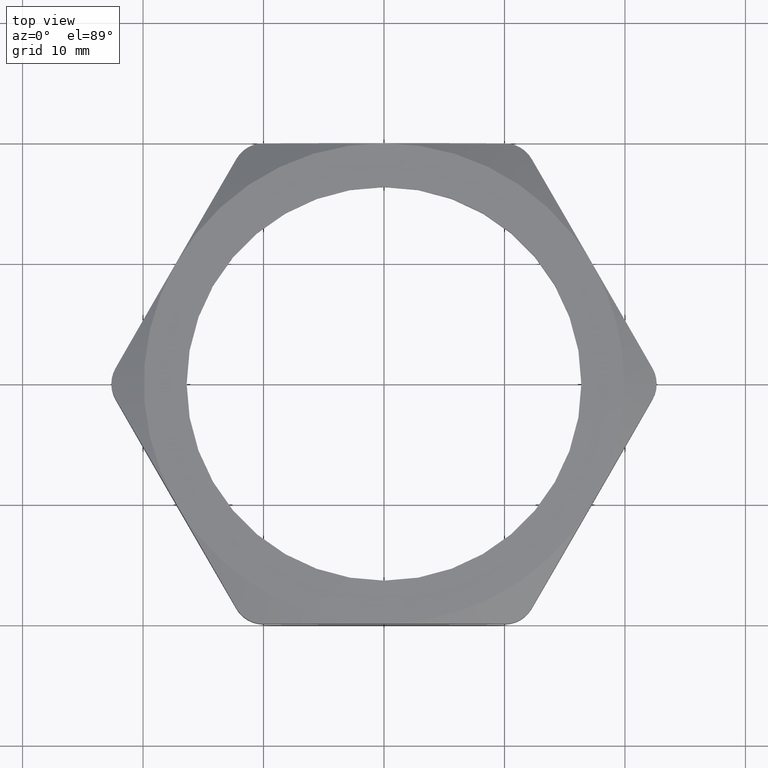
[diagram: clean part render]
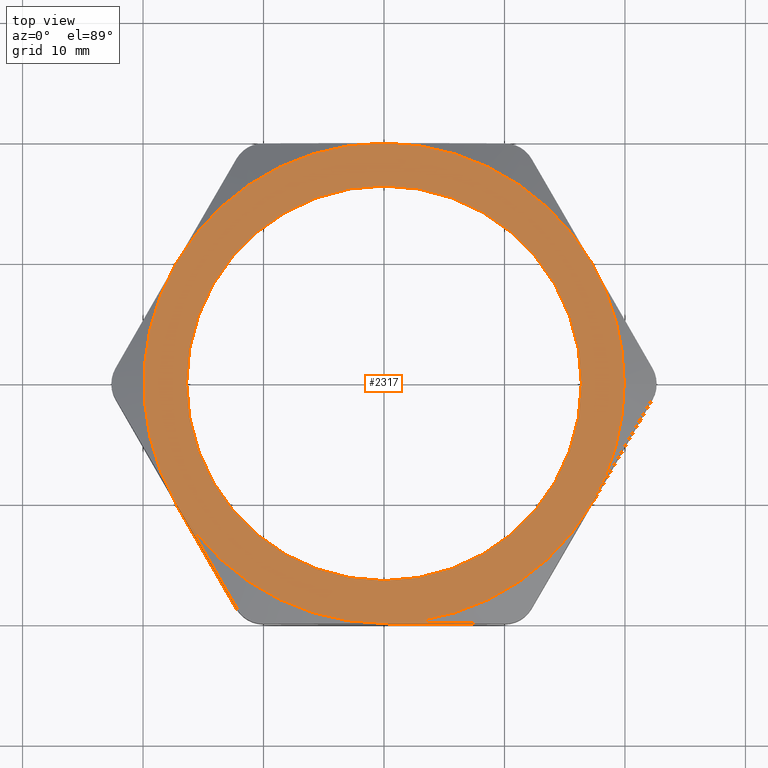
[diagram: same view with one face highlighted and labeled with its STEP entity id]
A machine part, top view. The second image highlights one B-rep face of the part: STEP entity #2317.
In plain terms, the highlighted planar face has unit normal (0, 0, 1).
Its self-contained STEP definition (entity closure, byte-faithful):
#173 = EDGE_CURVE ( 'NONE', #174, #175, #607, .T. ) ;
#174 = VERTEX_POINT ( 'NONE', #654 ) ;
#175 = VERTEX_POINT ( 'NONE', #653 ) ;
#232 = EDGE_CURVE ( 'NONE', #233, #234, #741, .T. ) ;
#233 = VERTEX_POINT ( 'NONE', #736 ) ;
#234 = VERTEX_POINT ( 'NONE', #735 ) ;
#607 = CIRCLE ( 'NONE', #658, 0.6449999999999999100 ) ;
#653 = CARTESIAN_POINT ( 'NONE',  ( 0.6449999999999999100, 8.021436534415163000E-017, 0.2700000000000000200 ) ) ;
#654 = CARTESIAN_POINT ( 'NONE',  ( -0.6449999999999999100, 0.0000000000000000000, 0.2700000000000000200 ) ) ;
#655 = DIRECTION ( 'NONE',  ( 1.000000000000000000, 0.0000000000000000000, 0.0000000000000000000 ) ) ;
#656 = DIRECTION ( 'NONE',  ( 0.0000000000000000000, 0.0000000000000000000, 1.000000000000000000 ) ) ;
#657 = CARTESIAN_POINT ( 'NONE',  ( 0.0000000000000000000, 0.0000000000000000000, 0.2700000000000000200 ) ) ;
#658 = AXIS2_PLACEMENT_3D ( 'NONE', #657, #656, #655 ) ;
#735 = CARTESIAN_POINT ( 'NONE',  ( 0.6798299419707848300, 0.3925000000000001300, 0.2700000000000000200 ) ) ;
#736 = CARTESIAN_POINT ( 'NONE',  ( 0.7850000000000002500, 0.0000000000000000000, 0.2700000000000000200 ) ) ;
#737 = DIRECTION ( 'NONE',  ( 1.000000000000000000, 0.0000000000000000000, 0.0000000000000000000 ) ) ;
#738 = DIRECTION ( 'NONE',  ( 0.0000000000000000000, 0.0000000000000000000, 1.000000000000000000 ) ) ;
#739 = CARTESIAN_POINT ( 'NONE',  ( 0.0000000000000000000, 0.0000000000000000000, 0.2700000000000000200 ) ) ;
#740 = AXIS2_PLACEMENT_3D ( 'NONE', #739, #738, #737 ) ;
#741 = CIRCLE ( 'NONE', #740, 0.7850000000000002500 ) ;
#1083 = DIRECTION ( 'NONE',  ( 1.000000000000000000, 0.0000000000000000000, 0.0000000000000000000 ) ) ;
#1084 = DIRECTION ( 'NONE',  ( 0.0000000000000000000, 0.0000000000000000000, 1.000000000000000000 ) ) ;
#1085 = CARTESIAN_POINT ( 'NONE',  ( 0.0000000000000000000, 0.0000000000000000000, 0.2700000000000000200 ) ) ;
#1086 = AXIS2_PLACEMENT_3D ( 'NONE', #1085, #1084, #1083 ) ;
#1087 = CIRCLE ( 'NONE', #1086, 0.6449999999999999100 ) ;
#1101 = DIRECTION ( 'NONE',  ( 1.000000000000000000, 0.0000000000000000000, 0.0000000000000000000 ) ) ;
#1102 = DIRECTION ( 'NONE',  ( 0.0000000000000000000, 0.0000000000000000000, 1.000000000000000000 ) ) ;
#1103 = CARTESIAN_POINT ( 'NONE',  ( 0.0000000000000000000, 0.0000000000000000000, 0.2700000000000000200 ) ) ;
#1104 = AXIS2_PLACEMENT_3D ( 'NONE', #1103, #1102, #1101 ) ;
#1109 = CIRCLE ( 'NONE', #1104, 0.7850000000000002500 ) ;
#1137 = DIRECTION ( 'NONE',  ( 1.000000000000000000, 0.0000000000000000000, 0.0000000000000000000 ) ) ;
#1138 = DIRECTION ( 'NONE',  ( 0.0000000000000000000, 0.0000000000000000000, 1.000000000000000000 ) ) ;
#1139 = AXIS2_PLACEMENT_3D ( 'NONE', #1145, #1138, #1137 ) ;
#1140 = CIRCLE ( 'NONE', #1139, 0.7850000000000002500 ) ;
#1145 = CARTESIAN_POINT ( 'NONE',  ( 0.0000000000000000000, 0.0000000000000000000, 0.2700000000000000200 ) ) ;
#1162 = DIRECTION ( 'NONE',  ( 1.000000000000000000, 0.0000000000000000000, 0.0000000000000000000 ) ) ;
#1163 = DIRECTION ( 'NONE',  ( 0.0000000000000000000, 0.0000000000000000000, 1.000000000000000000 ) ) ;
#1164 = CARTESIAN_POINT ( 'NONE',  ( 0.0000000000000000000, 0.0000000000000000000, 0.2700000000000000200 ) ) ;
#1165 = AXIS2_PLACEMENT_3D ( 'NONE', #1164, #1163, #1162 ) ;
#1166 = CIRCLE ( 'NONE', #1165, 0.7850000000000002500 ) ;
#1219 = DIRECTION ( 'NONE',  ( 1.000000000000000000, 0.0000000000000000000, 0.0000000000000000000 ) ) ;
#1220 = DIRECTION ( 'NONE',  ( 0.0000000000000000000, 0.0000000000000000000, 1.000000000000000000 ) ) ;
#1221 = AXIS2_PLACEMENT_3D ( 'NONE', #1226, #1220, #1219 ) ;
#1222 = CIRCLE ( 'NONE', #1221, 0.7850000000000002500 ) ;
#1226 = CARTESIAN_POINT ( 'NONE',  ( 0.0000000000000000000, 0.0000000000000000000, 0.2700000000000000200 ) ) ;
#1242 = FACE_OUTER_BOUND ( 'NONE', #2216, .T. ) ;
#1244 = FACE_BOUND ( 'NONE', #2315, .T. ) ;
#1253 = CARTESIAN_POINT ( 'NONE',  ( 0.0000000000000000000, 0.7850000000000002500, 0.2700000000000000200 ) ) ;
#1292 = DIRECTION ( 'NONE',  ( 1.000000000000000000, 0.0000000000000000000, 0.0000000000000000000 ) ) ;
#1293 = DIRECTION ( 'NONE',  ( 0.0000000000000000000, 0.0000000000000000000, 1.000000000000000000 ) ) ;
#1294 = CARTESIAN_POINT ( 'NONE',  ( -1.359659883941568800, -0.7849999999999999200, 0.2700000000000000200 ) ) ;
#1295 = AXIS2_PLACEMENT_3D ( 'NONE', #1294, #1293, #1292 ) ;
#1296 = PLANE ( 'NONE',  #1295 ) ;
#1483 = CARTESIAN_POINT ( 'NONE',  ( -0.6798299419707843900, 0.3925000000000001300, 0.2700000000000000200 ) ) ;
#1535 = CARTESIAN_POINT ( 'NONE',  ( 0.0000000000000000000, -0.7849999999999999200, 0.2700000000000000200 ) ) ;
#1537 = CARTESIAN_POINT ( 'NONE',  ( -0.6798299419707845000, -0.3924999999999998500, 0.2700000000000000200 ) ) ;
#1578 = CARTESIAN_POINT ( 'NONE',  ( 0.0000000000000000000, 0.0000000000000000000, 0.2700000000000000200 ) ) ;
#1579 = AXIS2_PLACEMENT_3D ( 'NONE', #1578, #1629, #1628 ) ;
#1581 = CIRCLE ( 'NONE', #1579, 0.7850000000000002500 ) ;
#1582 = DIRECTION ( 'NONE',  ( 1.000000000000000000, 0.0000000000000000000, 0.0000000000000000000 ) ) ;
#1583 = DIRECTION ( 'NONE',  ( 0.0000000000000000000, 0.0000000000000000000, 1.000000000000000000 ) ) ;
#1584 = CARTESIAN_POINT ( 'NONE',  ( 0.0000000000000000000, 0.0000000000000000000, 0.2700000000000000200 ) ) ;
#1585 = AXIS2_PLACEMENT_3D ( 'NONE', #1584, #1583, #1582 ) ;
#1590 = CIRCLE ( 'NONE', #1585, 0.7850000000000002500 ) ;
#1628 = DIRECTION ( 'NONE',  ( 1.000000000000000000, 0.0000000000000000000, 0.0000000000000000000 ) ) ;
#1629 = DIRECTION ( 'NONE',  ( 0.0000000000000000000, 0.0000000000000000000, 1.000000000000000000 ) ) ;
#1972 = CARTESIAN_POINT ( 'NONE',  ( 0.6798299419707843900, -0.3924999999999999000, 0.2700000000000000200 ) ) ;
#2212 = ORIENTED_EDGE ( 'NONE', *, *, #2292, .T. ) ;
#2216 = EDGE_LOOP ( 'NONE', ( #2212, #2312, #2335, #2235, #2247, #2255, #2374 ) ) ;
#2217 = ORIENTED_EDGE ( 'NONE', *, *, #2218, .F. ) ;
#2218 = EDGE_CURVE ( 'NONE', #175, #174, #1087, .T. ) ;
#2230 = EDGE_CURVE ( 'NONE', #2310, #2441, #1109, .T. ) ;
#2235 = ORIENTED_EDGE ( 'NONE', *, *, #2230, .T. ) ;
#2238 = EDGE_CURVE ( 'NONE', #234, #2310, #1140, .T. ) ;
#2247 = ORIENTED_EDGE ( 'NONE', *, *, #2253, .T. ) ;
#2253 = EDGE_CURVE ( 'NONE', #2441, #2448, #1166, .T. ) ;
#2255 = ORIENTED_EDGE ( 'NONE', *, *, #2477, .T. ) ;
#2292 = EDGE_CURVE ( 'NONE', #2695, #233, #1222, .T. ) ;
#2310 = VERTEX_POINT ( 'NONE', #1253 ) ;
#2312 = ORIENTED_EDGE ( 'NONE', *, *, #232, .T. ) ;
#2315 = EDGE_LOOP ( 'NONE', ( #2316, #2217 ) ) ;
#2316 = ORIENTED_EDGE ( 'NONE', *, *, #173, .F. ) ;
#2317 = ADVANCED_FACE ( 'NONE', ( #1244, #1242 ), #1296, .T. ) ;
#2335 = ORIENTED_EDGE ( 'NONE', *, *, #2238, .T. ) ;
#2374 = ORIENTED_EDGE ( 'NONE', *, *, #2473, .T. ) ;
#2441 = VERTEX_POINT ( 'NONE', #1483 ) ;
#2448 = VERTEX_POINT ( 'NONE', #1537 ) ;
#2450 = VERTEX_POINT ( 'NONE', #1535 ) ;
#2473 = EDGE_CURVE ( 'NONE', #2450, #2695, #1590, .T. ) ;
#2477 = EDGE_CURVE ( 'NONE', #2448, #2450, #1581, .T. ) ;
#2695 = VERTEX_POINT ( 'NONE', #1972 ) ;